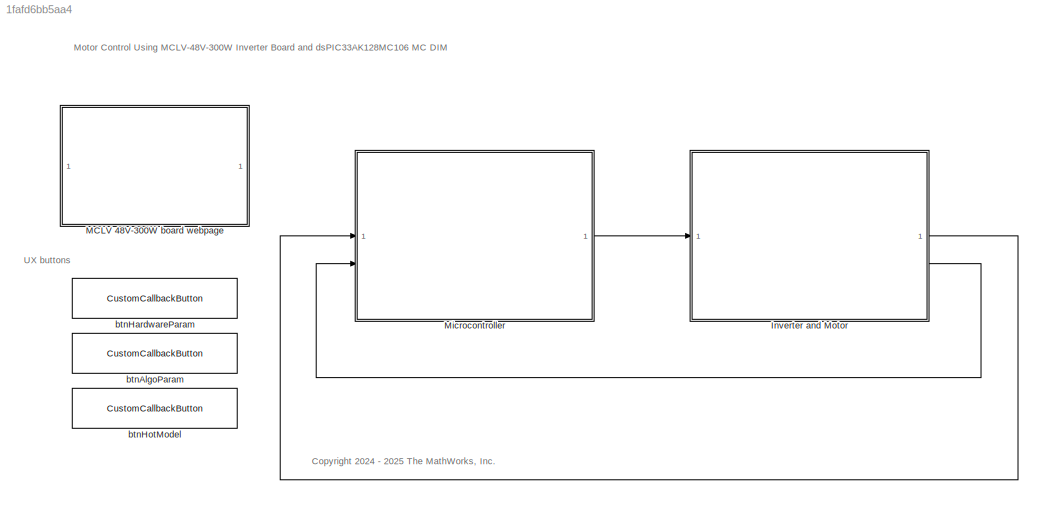
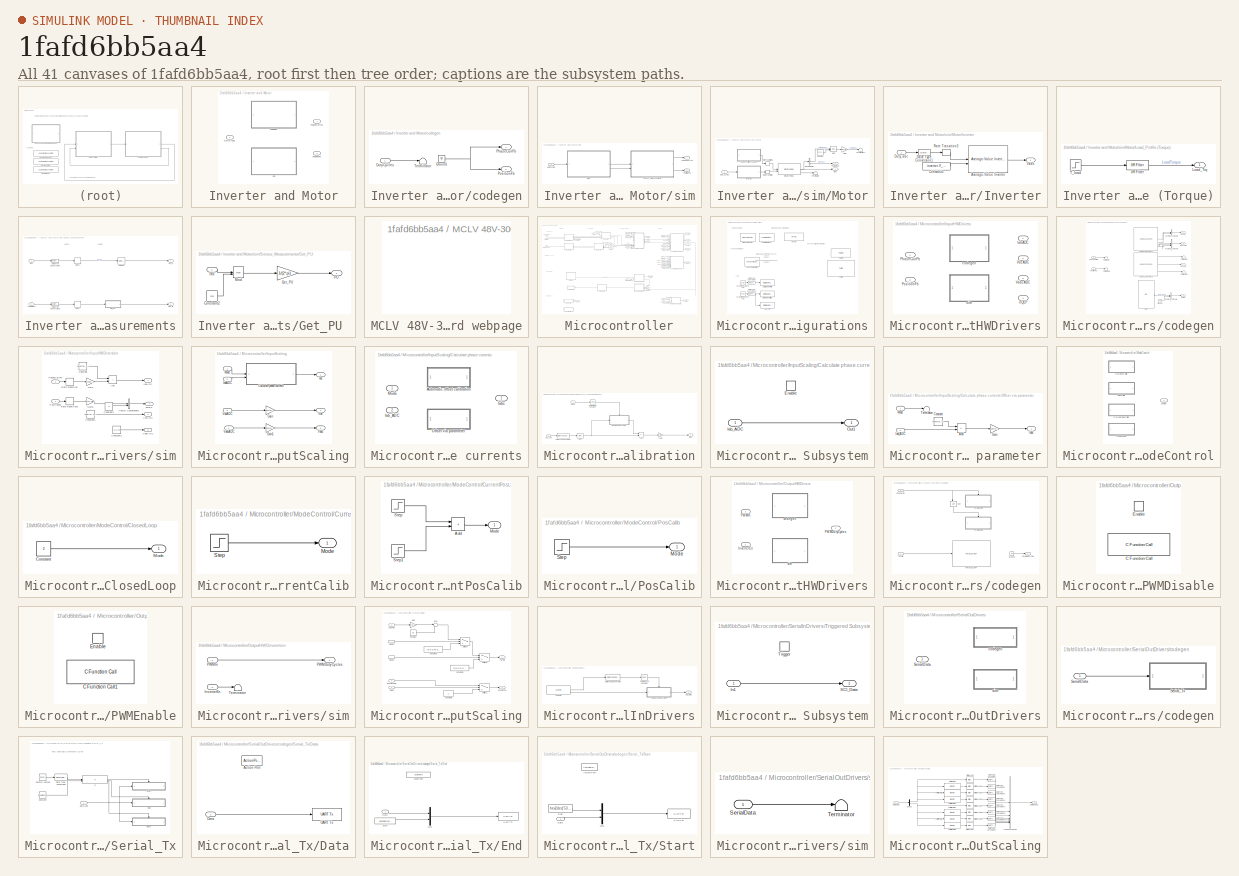
[diagram: thumbnail index - all 41 canvases of the model, root first then tree order]
MODEL slx_1fafd6bb5aa4
KIND model
CONFIG AbsTol = auto
CONFIG EnableMultiTasking = on
CONFIG FixedStep = 50e-6
CONFIG InitFcn = MicrochipTargetMotorControlData;\nmcbMotorSwapData;\n
CONFIG MaxStep = auto
CONFIG MinStep = auto
CONFIG RelTol = 1e-3
CONFIG SampleTimeConstraint = Unconstrained
CONFIG SolverName = FixedStepDiscrete
CONFIG StartTime = 0.0
CONFIG StopTime = inf
BLOCK [SubSystem] Inverter and Motor
  Variant = on
  VariantControlMode = sim codegen switching
BLOCK [Inport] Inverter and Motor/DutyCycles
BLOCK [Outport] Inverter and Motor/PhaseCurrFb
BLOCK [Outport] Inverter and Motor/PositionFb
  Port = 2
BLOCK [SubSystem] Inverter and Motor/codegen
  VariantControl = (codegen)
BLOCK [Inport] Inverter and Motor/codegen/DutyCycles
BLOCK [Ground] Inverter and Motor/codegen/Ground
BLOCK [Outport] Inverter and Motor/codegen/PhaseCurrFb
BLOCK [Outport] Inverter and Motor/codegen/PositionFb
  Port = 2
BLOCK [Terminator] Inverter and Motor/codegen/Terminator
BLOCK [SubSystem] Inverter and Motor/sim
  VariantControl = (sim)
BLOCK [Inport] Inverter and Motor/sim/DutyCycles
BLOCK [SubSystem] Inverter and Motor/sim/Motor
BLOCK [BusSelector] Inverter and Motor/sim/Motor/Bus Selector
  OutputSignals = MtrElcPos,MtrPos
BLOCK [Constant] Inverter and Motor/sim/Motor/Constant
  Value = 2*pi
BLOCK [Inport] Inverter and Motor/sim/Motor/Duty_Cycles
BLOCK [Gain] Inverter and Motor/sim/Motor/Gain
  Gain = 1/(2*pi)
BLOCK [Outport] Inverter and Motor/sim/Motor/Iabc
  VectorParamsAs1DForOutWhenUnconnected = off
BLOCK [Reference] Inverter and Motor/sim/Motor/Interior PMSM  REF=autolibpmsminterior/Interior PMSM
  SourceBlock = autolibpmsminterior/Interior PMSM
  SourceType = Interior PMSM
BLOCK [SubSystem] Inverter and Motor/sim/Motor/Inverter
BLOCK [Reference] Inverter and Motor/sim/Motor/Inverter/Average-Value Inverter  REF=mcbplantlib/Average-Value Inverter
  SourceBlock = mcbplantlib/Average-Value Inverter
  SourceType = Average Value Inverter
BLOCK [Constant] Inverter and Motor/sim/Motor/Inverter/Constant2
  OutDataTypeStr = single
  SampleTime = -1
  Value = inverter.V_dc
BLOCK [DataTypeConversion] Inverter and Motor/sim/Motor/Inverter/Data Type Conversion1
  OutDataTypeStr = single
  RndMeth = Simplest
  SaturateOnIntegerOverflow = off
BLOCK [Inport] Inverter and Motor/sim/Motor/Inverter/Duty_abc
BLOCK [RateTransition] Inverter and Motor/sim/Motor/Inverter/Rate Transition3
  Deterministic = off
  OutPortSampleTime = Ts_inverter
BLOCK [Outport] Inverter and Motor/sim/Motor/Inverter/Vabc
  VectorParamsAs1DForOutWhenUnconnected = off
BLOCK [SubSystem] Inverter and Motor/sim/Motor/Load_Profile (Torque)
BLOCK [Reference] Inverter and Motor/sim/Motor/Load_Profile (Torque)/IIR Filter  REF=mcbcontrolslib/IIR Filter
  SourceBlock = mcbcontrolslib/IIR Filter
  SourceType = IIR Filter
BLOCK [Outport] Inverter and Motor/sim/Motor/Load_Profile (Torque)/Load_Trq
  VectorParamsAs1DForOutWhenUnconnected = off
BLOCK [Step] Inverter and Motor/sim/Motor/Load_Profile (Torque)/T_load
  After = 0.05 * pmsm.T_rated
  SampleTime = Ts_motor
  Time = 8
BLOCK [Math] Inverter and Motor/sim/Motor/Mod
  Operator = mod
BLOCK [RateTransition] Inverter and Motor/sim/Motor/Rate Transition
  Deterministic = off
  OutPortSampleTime = Ts_motor
BLOCK [RateTransition] Inverter and Motor/sim/Motor/Rate Transition1
  Deterministic = off
  OutPortSampleTime = Ts_motor
BLOCK [Terminator] Inverter and Motor/sim/Motor/Terminator
BLOCK [Terminator] Inverter and Motor/sim/Motor/Terminator1
BLOCK [Outport] Inverter and Motor/sim/Motor/ThetaMech
  Port = 2
  VectorParamsAs1DForOutWhenUnconnected = off
BLOCK [Outport] Inverter and Motor/sim/PhaseCurrFb
BLOCK [Outport] Inverter and Motor/sim/PositionFb
  Port = 2
BLOCK [SubSystem] Inverter and Motor/sim/Sensor_Measurements
BLOCK [DataTypeConversion] Inverter and Motor/sim/Sensor_Measurements/Data Type Conversion2
  OutDataTypeStr = single
  RndMeth = Simplest
  SaturateOnIntegerOverflow = off
BLOCK [DataTypeConversion] Inverter and Motor/sim/Sensor_Measurements/Data Type Conversion4
  OutDataTypeStr = single
  RndMeth = Simplest
  SaturateOnIntegerOverflow = off
BLOCK [Delay] Inverter and Motor/sim/Sensor_Measurements/Delay1
  InputPortMap = u0
BLOCK [Delay] Inverter and Motor/sim/Sensor_Measurements/Delay2
  InputPortMap = u0
BLOCK [SubSystem] Inverter and Motor/sim/Sensor_Measurements/Get_PU 
BLOCK [Constant] Inverter and Motor/sim/Sensor_Measurements/Get_PU /Constant2
  OutDataTypeStr = single
  SampleTime = -1
  Value = 2*pi
BLOCK [Gain] Inverter and Motor/sim/Sensor_Measurements/Get_PU /Get_PU
  Gain = 1/(2*pi)
  OutDataTypeStr = dataType
  RndMeth = Simplest
BLOCK [Math] Inverter and Motor/sim/Sensor_Measurements/Get_PU /Mod
  Operator = mod
BLOCK [Outport] Inverter and Motor/sim/Sensor_Measurements/Get_PU /PU
  VectorParamsAs1DForOutWhenUnconnected = off
BLOCK [Inport] Inverter and Motor/sim/Sensor_Measurements/Get_PU /rad
BLOCK [Outport] Inverter and Motor/sim/Sensor_Measurements/Iab_fb
  VectorParamsAs1DForOutWhenUnconnected = off
BLOCK [Inport] Inverter and Motor/sim/Sensor_Measurements/Iabc
BLOCK [Outport] Inverter and Motor/sim/Sensor_Measurements/Pos_fb
  Port = 2
  VectorParamsAs1DForOutWhenUnconnected = off
BLOCK [Selector] Inverter and Motor/sim/Sensor_Measurements/Selector
  IndexOptions = Index vector (dialog)
  Indices = [1 2]
  InputPortWidth = 3
  OutputSizes = 1
BLOCK [Inport] Inverter and Motor/sim/Sensor_Measurements/ThetaMech
  Port = 2
BLOCK [SubSystem] MCLV 48V-300W board webpage
  OpenFcn = web('https://www.microchip.com/en-us/development-tool/EV62P66A','-browser'); % dsPIC33CK256MP508 DIM\npause(1);\nweb('https://www.microchip.com/en-us/development-tool/EV18H47A','-browser'); % LVMC 300W
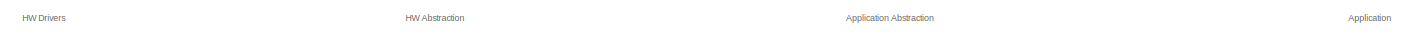
[diagram: Microcontroller - part 1/4, top center region]
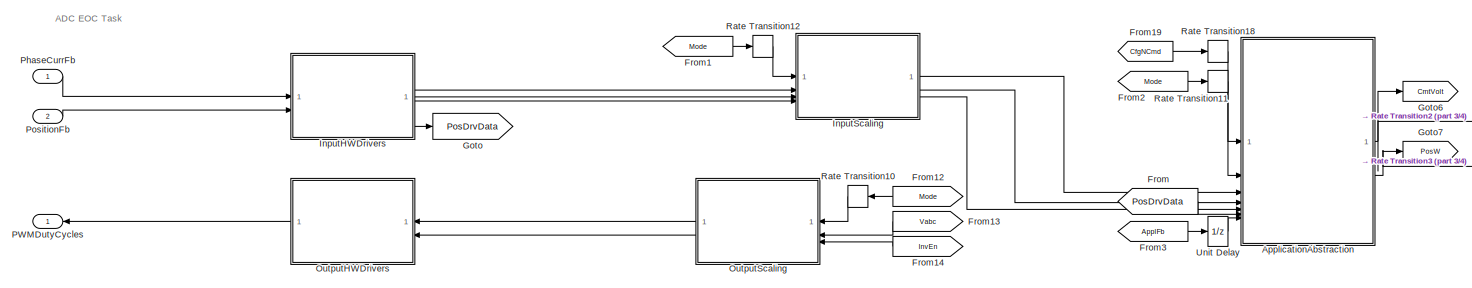
[diagram: Microcontroller - part 2/4, top center region]
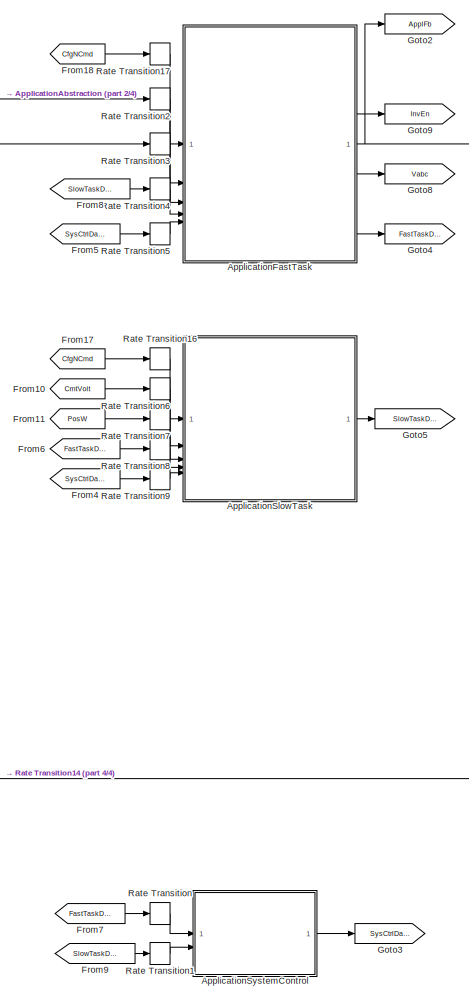
[diagram: Microcontroller - part 3/4, right side, full height]
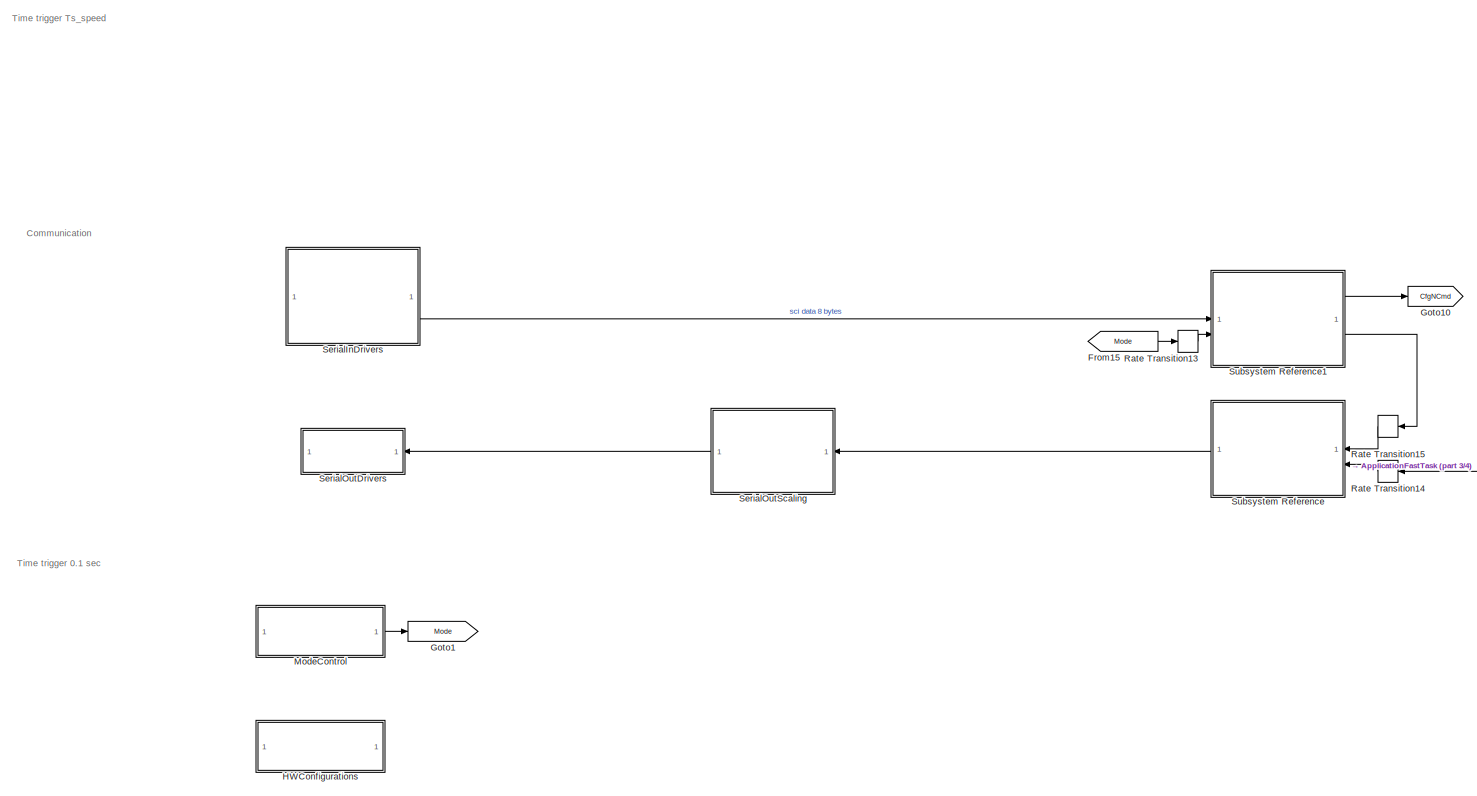
[diagram: Microcontroller - part 4/4, central region]
BLOCK [SubSystem] Microcontroller
BLOCK [SubSystem] Microcontroller/ApplicationAbstraction
  ReferencedSubsystem = ApplicationAbstractionMotorSwap
BLOCK [SubSystem] Microcontroller/ApplicationFastTask
  ReferencedSubsystem = ApplicationMotorSwapHighPrio
  SystemSampleTime = Ts
  TreatAsAtomicUnit = on
BLOCK [SubSystem] Microcontroller/ApplicationSlowTask
  ReferencedSubsystem = ApplicationMotorSwapLowPrio
  SystemSampleTime = Ts_speed
  TreatAsAtomicUnit = on
BLOCK [SubSystem] Microcontroller/ApplicationSystemControl
  ReferencedSubsystem = ApplicationMotorSwapSysControl
  SystemSampleTime = 0.1
  TreatAsAtomicUnit = on
BLOCK [From] Microcontroller/From
  GotoTag = PosDrvData
BLOCK [From] Microcontroller/From1
  GotoTag = Mode
BLOCK [From] Microcontroller/From10
  GotoTag = CrntVolt
BLOCK [From] Microcontroller/From11
  GotoTag = PosW
BLOCK [From] Microcontroller/From12
  GotoTag = Mode
BLOCK [From] Microcontroller/From13
  GotoTag = Vabc
BLOCK [From] Microcontroller/From14
  GotoTag = InvEn
BLOCK [From] Microcontroller/From15
  GotoTag = Mode
BLOCK [From] Microcontroller/From17
  GotoTag = CfgNCmd
BLOCK [From] Microcontroller/From18
  GotoTag = CfgNCmd
BLOCK [From] Microcontroller/From19
  GotoTag = CfgNCmd
BLOCK [From] Microcontroller/From2
  GotoTag = Mode
BLOCK [From] Microcontroller/From3
  GotoTag = ApplFb
BLOCK [From] Microcontroller/From4
  GotoTag = SysCtrlData
BLOCK [From] Microcontroller/From5
  GotoTag = SysCtrlData
BLOCK [From] Microcontroller/From6
  GotoTag = FastTaskData
BLOCK [From] Microcontroller/From7
  GotoTag = FastTaskData
BLOCK [From] Microcontroller/From8
  GotoTag = SlowTaskData
BLOCK [From] Microcontroller/From9
  GotoTag = SlowTaskData
BLOCK [Goto] Microcontroller/Goto
  GotoTag = PosDrvData
BLOCK [Goto] Microcontroller/Goto1
  GotoTag = Mode
BLOCK [Goto] Microcontroller/Goto10
  GotoTag = CfgNCmd
BLOCK [Goto] Microcontroller/Goto2
  GotoTag = ApplFb
BLOCK [Goto] Microcontroller/Goto3
  GotoTag = SysCtrlData
BLOCK [Goto] Microcontroller/Goto4
  GotoTag = FastTaskData
BLOCK [Goto] Microcontroller/Goto5
  GotoTag = SlowTaskData
BLOCK [Goto] Microcontroller/Goto6
  GotoTag = CrntVolt
BLOCK [Goto] Microcontroller/Goto7
  GotoTag = PosW
BLOCK [Goto] Microcontroller/Goto8
  GotoTag = Vabc
BLOCK [Goto] Microcontroller/Goto9
  GotoTag = InvEn
BLOCK [SubSystem] Microcontroller/HWConfigurations
BLOCK [Reference] Microcontroller/HWConfigurations/Compiler Options  REF=MCHP_Blockset/System Configuration/Compiler Options
  Priority = 1
  SourceBlock = MCHP_Blockset/System Configuration/Compiler Options
  SourceProductName = MPLAB Device Blocks for Simulink
BLOCK [Reference] Microcontroller/HWConfigurations/Counter Free-Running1  REF=simulink/Sources/Counter
Free-Running
  SourceBlock = simulink/Sources/Counter\nFree-Running
  SourceType = Counter Free-Running
BLOCK [Reference] Microcontroller/HWConfigurations/Counter Free-Running2  REF=simulink/Sources/Counter
Free-Running
  SourceBlock = simulink/Sources/Counter\nFree-Running
  SourceType = Counter Free-Running
BLOCK [DataTypeConversion] Microcontroller/HWConfigurations/Data Type Conversion
  RndMeth = Floor
  SaturateOnIntegerOverflow = off
BLOCK [DataTypeConversion] Microcontroller/HWConfigurations/Data Type Conversion1
  RndMeth = Floor
  SaturateOnIntegerOverflow = off
BLOCK [Reference] Microcontroller/HWConfigurations/Digital Output Write  REF=MCHP_Blockset/Digital IO/Digital Output
Write
  SourceBlock = MCHP_Blockset/Digital IO/Digital Output\nWrite
  SourceProductName = MPLAB Device Blocks for Simulink
  SourceType = Output driver for Digital Output Pins
BLOCK [Reference] Microcontroller/HWConfigurations/Digital Output Write1  REF=MCHP_Blockset/Digital IO/Digital Output
Write
  SourceBlock = MCHP_Blockset/Digital IO/Digital Output\nWrite
  SourceProductName = MPLAB Device Blocks for Simulink
  SourceType = Output driver for Digital Output Pins
BLOCK [Reference] Microcontroller/HWConfigurations/LED_PIM  REF=MCHP_Blockset/Digital IO/Digital Output
Write
  SourceBlock = MCHP_Blockset/Digital IO/Digital Output\nWrite
  SourceProductName = MPLAB Device Blocks for Simulink
  SourceType = Output driver for Digital Output Pins
BLOCK [Reference] Microcontroller/HWConfigurations/Microchip Master  REF=MCHP_Blockset/System Configuration/Microchip Master
  Priority = 1
  SourceBlock = MCHP_Blockset/System Configuration/Microchip Master
  SourceProductName = MPLAB Device Blocks for Simulink
BLOCK [Reference] Microcontroller/HWConfigurations/Op-Amp  REF=MCHP_Blockset/Analog IO/Op-Amp
  Priority = -2000
  SourceBlock = MCHP_Blockset/Analog IO/Op-Amp
  SourceProductName = MPLAB Device Blocks for Simulink
  SourceType = Configure on chip Op AMP
  UserDataPersistent = on
BLOCK [Reference] Microcontroller/HWConfigurations/Port Info  REF=MCHP_Blockset/System Info/Port Info
  SourceBlock = MCHP_Blockset/System Info/Port Info
  SourceProductName = MPLAB Device Blocks for Simulink
BLOCK [Reference] Microcontroller/HWConfigurations/Timer Info  REF=MCHP_Blockset/System Info/Timer Info
  SourceBlock = MCHP_Blockset/System Info/Timer Info
  SourceProductName = MPLAB Device Blocks for Simulink
BLOCK [Reference] Microcontroller/HWConfigurations/UART Configuration  REF=MCHP_Blockset/BUS UART/UART Configuration
  SourceBlock = MCHP_Blockset/BUS UART/UART Configuration
  SourceProductName = MPLAB Device Blocks for Simulink
  SourceType = Configuration for UART peripheral
BLOCK [SubSystem] Microcontroller/InputHWDrivers
  Variant = on
  VariantControlMode = sim codegen switching
BLOCK [Outport] Microcontroller/InputHWDrivers/IabADC
BLOCK [Inport] Microcontroller/InputHWDrivers/PhaseCurrFb
BLOCK [Inport] Microcontroller/InputHWDrivers/PositionFb
  Port = 2
BLOCK [Outport] Microcontroller/InputHWDrivers/VabcADC
  Port = 3
BLOCK [Outport] Microcontroller/InputHWDrivers/VdcADC
  Port = 2
BLOCK [SubSystem] Microcontroller/InputHWDrivers/codegen
  VariantControl = (codegen)
BLOCK [Reference] Microcontroller/InputHWDrivers/codegen/ADC HS 12b dsPICA1  REF=MCHP_Blockset/Analog IO/ADC HS 12b dsPICA
  SourceBlock = MCHP_Blockset/Analog IO/ADC HS 12b dsPICA
  SourceProductName = MPLAB Device Blocks for Simulink
  SourceType = ADC HS 12b for dsPIC 33AK family
  UserDataPersistent = on
BLOCK [Reference] Microcontroller/InputHWDrivers/codegen/ADC HS 12b dsPICA2  REF=MCHP_Blockset/Analog IO/ADC HS 12b dsPICA
  SourceBlock = MCHP_Blockset/Analog IO/ADC HS 12b dsPICA
  SourceProductName = MPLAB Device Blocks for Simulink
  SourceType = ADC HS 12b for dsPIC 33AK family
  UserDataPersistent = on
BLOCK [Ground] Microcontroller/InputHWDrivers/codegen/Ground
BLOCK [Outport] Microcontroller/InputHWDrivers/codegen/IabADC
BLOCK [Inport] Microcontroller/InputHWDrivers/codegen/PhaseCurrFb
BLOCK [Inport] Microcontroller/InputHWDrivers/codegen/PositionFb
  Port = 2
BLOCK [Reference] Microcontroller/InputHWDrivers/codegen/QEI1  REF=MCHP_Blockset/QEI/QEI
  SourceBlock = MCHP_Blockset/QEI/QEI
  SourceProductName = MPLAB Device Blocks for Simulink
  SourceType = Output Driver for Quadrature Encoder Interface (QEI) peripheral
  UserDataPersistent = on
BLOCK [Terminator] Microcontroller/InputHWDrivers/codegen/Terminator
BLOCK [Terminator] Microcontroller/InputHWDrivers/codegen/Terminator1
BLOCK [Terminator] Microcontroller/InputHWDrivers/codegen/Terminator2
BLOCK [Terminator] Microcontroller/InputHWDrivers/codegen/Terminator3
BLOCK [Outport] Microcontroller/InputHWDrivers/codegen/VabcADC
  Port = 3
BLOCK [Outport] Microcontroller/InputHWDrivers/codegen/VdcADC
  Port = 2
BLOCK [Concatenate] Microcontroller/InputHWDrivers/codegen/Vector Concatenate
BLOCK [Concatenate] Microcontroller/InputHWDrivers/codegen/Vector Concatenate1
BLOCK [Concatenate] Microcontroller/InputHWDrivers/codegen/Vector Concatenate2
  NumInputs = 3
BLOCK [Outport] Microcontroller/InputHWDrivers/codegen/eQEP
  Port = 4
BLOCK [Outport] Microcontroller/InputHWDrivers/eQEP
  Port = 4
BLOCK [SubSystem] Microcontroller/InputHWDrivers/sim
  VariantControl = (sim)
BLOCK [Sum] Microcontroller/InputHWDrivers/sim/Add
  IconShape = rectangular
  OutDataTypeStr = Inherit: Same as first input
  RndMeth = Simplest
BLOCK [Constant] Microcontroller/InputHWDrivers/sim/Constant
  OutDataTypeStr = int16
  Value = [inverter.CtSensAOffset inverter.CtSensBOffset]
BLOCK [Constant] Microcontroller/InputHWDrivers/sim/Constant1
  OutDataTypeStr = uint16
  SampleTime = Ts
  Value = inverter.V_dc / inverter.VoltPerCount
BLOCK [Constant] Microcontroller/InputHWDrivers/sim/Constant2
  OutDataTypeStr = Inherit: Inherit via back propagation
  SampleTime = Ts
  Value = 0
BLOCK [Constant] Microcontroller/InputHWDrivers/sim/Constant3
  OutDataTypeStr = uint16
  SampleTime = Ts
  Value = [0 0 0]
BLOCK [Gain] Microcontroller/InputHWDrivers/sim/Gain
  Gain = 1/inverter.AMPPerCount
  OutDataTypeStr = int16
  RndMeth = Simplest
BLOCK [Gain] Microcontroller/InputHWDrivers/sim/Gain1
  Gain = pmsm.QEPSlits * 4
  OutDataTypeStr = uint16
  RndMeth = Simplest
BLOCK [Outport] Microcontroller/InputHWDrivers/sim/IabADC
BLOCK [Inport] Microcontroller/InputHWDrivers/sim/PhaseCurrFb
BLOCK [Inport] Microcontroller/InputHWDrivers/sim/PositionFb
  Port = 2
BLOCK [RateTransition] Microcontroller/InputHWDrivers/sim/Rate Transition
  Deterministic = off
  OutPortSampleTime = Ts
BLOCK [RateTransition] Microcontroller/InputHWDrivers/sim/Rate Transition1
  Deterministic = off
  OutPortSampleTime = Ts
BLOCK [Outport] Microcontroller/InputHWDrivers/sim/VabcADC
  Port = 3
BLOCK [Outport] Microcontroller/InputHWDrivers/sim/VdcADC
  Port = 2
BLOCK [Concatenate] Microcontroller/InputHWDrivers/sim/Vector Concatenate
BLOCK [Outport] Microcontroller/InputHWDrivers/sim/eQEP
  Port = 4
BLOCK [SubSystem] Microcontroller/InputScaling
BLOCK [SubSystem] Microcontroller/InputScaling/Calculate phase currents
  Variant = on
BLOCK [SubSystem] Microcontroller/InputScaling/Calculate phase currents/Automatic offset calibration
  VariantControl = inverter.ADCOffsetCalibEnable == 1
BLOCK [Sum] Microcontroller/InputScaling/Calculate phase currents/Automatic offset calibration/Add
  IconShape = rectangular
  Inputs = -+
BLOCK [Bias] Microcontroller/InputScaling/Calculate phase currents/Automatic offset calibration/Bias
  Bias = -2^11
  SaturateOnIntegerOverflow = off
BLOCK [Reference] Microcontroller/InputScaling/Calculate phase currents/Automatic offset calibration/Compare To Constant  REF=simulink/Logic and Bit
Operations/Compare
To Constant
  SourceBlock = simulink/Logic and Bit\nOperations/Compare\nTo Constant
  SourceType = Compare To Constant
BLOCK [DataTypeConversion] Microcontroller/InputScaling/Calculate phase currents/Automatic offset calibration/Data Type Conversion
  OutDataTypeStr = int16
  RndMeth = Floor
  SaturateOnIntegerOverflow = off
BLOCK [SubSystem] Microcontroller/InputScaling/Calculate phase currents/Automatic offset calibration/Enabled Subsystem
  TreatAsAtomicUnit = on
BLOCK [EnablePort] Microcontroller/InputScaling/Calculate phase currents/Automatic offset calibration/Enabled Subsystem/Enable
BLOCK [Inport] Microcontroller/InputScaling/Calculate phase currents/Automatic offset calibration/Enabled Subsystem/Iab_ADC
BLOCK [Outport] Microcontroller/InputScaling/Calculate phase currents/Automatic offset calibration/Enabled Subsystem/Out1
BLOCK [Gain] Microcontroller/InputScaling/Calculate phase currents/Automatic offset calibration/Gain
  Gain = inverter.AMPPerCount
  OutDataTypeStr = dataType
  RndMeth = Simplest
BLOCK [Inport] Microcontroller/InputScaling/Calculate phase currents/Automatic offset calibration/Iab_ADC
  Port = 2
BLOCK [Outport] Microcontroller/InputScaling/Calculate phase currents/Automatic offset calibration/Iabc
BLOCK [Inport] Microcontroller/InputScaling/Calculate phase currents/Automatic offset calibration/Mode
BLOCK [Inport] Microcontroller/InputScaling/Calculate phase currents/Iab_ADC
  Port = 2
BLOCK [Outport] Microcontroller/InputScaling/Calculate phase currents/Iabc
BLOCK [Inport] Microcontroller/InputScaling/Calculate phase currents/Mode
BLOCK [SubSystem] Microcontroller/InputScaling/Calculate phase currents/Offser via parameter
  VariantControl = inverter.ADCOffsetCalibEnable == 0
BLOCK [Sum] Microcontroller/InputScaling/Calculate phase currents/Offser via parameter/Add
  IconShape = rectangular
  Inputs = -+
BLOCK [Constant] Microcontroller/InputScaling/Calculate phase currents/Offser via parameter/Constant
  OutDataTypeStr = int16
  Value = [inverter.CtSensAOffset inverter.CtSensBOffset]
BLOCK [Gain] Microcontroller/InputScaling/Calculate phase currents/Offser via parameter/Gain
  Gain = inverter.AMPPerCount
  OutDataTypeStr = dataType
  RndMeth = Simplest
BLOCK [Inport] Microcontroller/InputScaling/Calculate phase currents/Offser via parameter/Iab_ADC
  Port = 2
BLOCK [Outport] Microcontroller/InputScaling/Calculate phase currents/Offser via parameter/Iabc
BLOCK [Inport] Microcontroller/InputScaling/Calculate phase currents/Offser via parameter/Mode
BLOCK [Terminator] Microcontroller/InputScaling/Calculate phase currents/Offser via parameter/Terminator
BLOCK [Gain] Microcontroller/InputScaling/Gain
  Gain = inverter.VoltPerCount
  OutDataTypeStr = dataType
  RndMeth = Simplest
BLOCK [Gain] Microcontroller/InputScaling/Gain1
  Gain = inverter.VoltPerCount
  OutDataTypeStr = dataType
  RndMeth = Simplest
BLOCK [Outport] Microcontroller/InputScaling/Iab
BLOCK [Inport] Microcontroller/InputScaling/IabADC
  Port = 2
BLOCK [Inport] Microcontroller/InputScaling/Mode
BLOCK [Outport] Microcontroller/InputScaling/Vabc
  Port = 3
BLOCK [Inport] Microcontroller/InputScaling/VabcADC
  Port = 4
BLOCK [Outport] Microcontroller/InputScaling/Vdc
  Port = 2
BLOCK [Inport] Microcontroller/InputScaling/VdcADC
  Port = 3
BLOCK [SubSystem] Microcontroller/ModeControl
  Variant = on
BLOCK [SubSystem] Microcontroller/ModeControl/ClosedLoop
  VariantControl = inverter.ADCOffsetCalibEnable == 0 && pmsm.QEPIndexPresent == true
BLOCK [Constant] Microcontroller/ModeControl/ClosedLoop/Constant
  OutDataTypeStr = single
  SampleTime = 0.1
  Value = 2
BLOCK [Outport] Microcontroller/ModeControl/ClosedLoop/Mode
BLOCK [SubSystem] Microcontroller/ModeControl/CurrentCalib
  VariantControl = inverter.ADCOffsetCalibEnable == 1 && pmsm.QEPIndexPresent == true
BLOCK [Outport] Microcontroller/ModeControl/CurrentCalib/Mode
BLOCK [Step] Microcontroller/ModeControl/CurrentCalib/Step
  After = 2
  OutDataTypeStr = single
  SampleTime = 0.1
BLOCK [SubSystem] Microcontroller/ModeControl/CurrentPosCalib
  VariantControl = inverter.ADCOffsetCalibEnable == 1 && pmsm.QEPIndexPresent == false
BLOCK [Sum] Microcontroller/ModeControl/CurrentPosCalib/Add
  AccumDataTypeStr = Inherit: Same as first input
  IconShape = rectangular
BLOCK [Outport] Microcontroller/ModeControl/CurrentPosCalib/Mode
BLOCK [Step] Microcontroller/ModeControl/CurrentPosCalib/Step
  OutDataTypeStr = single
  SampleTime = 0.1
BLOCK [Step] Microcontroller/ModeControl/CurrentPosCalib/Step1
  OutDataTypeStr = single
  SampleTime = 0.1
  Time = 2
BLOCK [Outport] Microcontroller/ModeControl/Mode
BLOCK [SubSystem] Microcontroller/ModeControl/PosCalib
  VariantControl = inverter.ADCOffsetCalibEnable == 0 && pmsm.QEPIndexPresent == false
BLOCK [Outport] Microcontroller/ModeControl/PosCalib/Mode
BLOCK [Step] Microcontroller/ModeControl/PosCalib/Step
  After = 2
  Before = 1
  OutDataTypeStr = single
  SampleTime = 0.1
BLOCK [SubSystem] Microcontroller/OutputHWDrivers
  Variant = on
  VariantControlMode = sim codegen switching
BLOCK [Inport] Microcontroller/OutputHWDrivers/InverterEn
  Port = 2
BLOCK [Outport] Microcontroller/OutputHWDrivers/PWMDutyCycles
BLOCK [Inport] Microcontroller/OutputHWDrivers/PWMIn
BLOCK [SubSystem] Microcontroller/OutputHWDrivers/codegen
  VariantControl = (codegen)
BLOCK [Ground] Microcontroller/OutputHWDrivers/codegen/Ground
BLOCK [Inport] Microcontroller/OutputHWDrivers/codegen/InverterEn
  Port = 2
BLOCK [Logic] Microcontroller/OutputHWDrivers/codegen/NOT
  AllPortsSameDT = off
  IconShape = distinctive
  NameLocation = left
  Operator = NOT
  OutDataTypeStr = boolean
BLOCK [SubSystem] Microcontroller/OutputHWDrivers/codegen/PWMDisable
BLOCK [Reference] Microcontroller/OutputHWDrivers/codegen/PWMDisable/C Function Call  REF=MCHP_Blockset/User Functions/C Function Call
  SourceBlock = MCHP_Blockset/User Functions/C Function Call
  SourceProductName = MPLAB Device Blocks for Simulink
  SourceType = C Function Call
  UserDataPersistent = on
BLOCK [EnablePort] Microcontroller/OutputHWDrivers/codegen/PWMDisable/Enable
BLOCK [Outport] Microcontroller/OutputHWDrivers/codegen/PWMDutyCycles
BLOCK [SubSystem] Microcontroller/OutputHWDrivers/codegen/PWMEnable
BLOCK [Reference] Microcontroller/OutputHWDrivers/codegen/PWMEnable/C Function Call1  REF=MCHP_Blockset/User Functions/C Function Call
  SourceBlock = MCHP_Blockset/User Functions/C Function Call
  SourceProductName = MPLAB Device Blocks for Simulink
  SourceType = C Function Call
  UserDataPersistent = on
BLOCK [EnablePort] Microcontroller/OutputHWDrivers/codegen/PWMEnable/Enable
BLOCK [Inport] Microcontroller/OutputHWDrivers/codegen/PWMIn
BLOCK [Reference] Microcontroller/OutputHWDrivers/codegen/PWM_HS_FEP  REF=MCHP_Blockset/PWM IO/PWM_HS_FEP
  Priority = -2000
  SourceBlock = MCHP_Blockset/PWM IO/PWM_HS_FEP
  SourceProductName = MPLAB Device Blocks for Simulink
  SourceType = PWM High-Speed Fine-Edge-Placement
  UserDataPersistent = on
BLOCK [SubSystem] Microcontroller/OutputHWDrivers/sim
  VariantControl = (sim)
BLOCK [Inport] Microcontroller/OutputHWDrivers/sim/InverterEn
  Port = 2
BLOCK [Outport] Microcontroller/OutputHWDrivers/sim/PWMDutyCycles
BLOCK [Inport] Microcontroller/OutputHWDrivers/sim/PWMIn
BLOCK [Terminator] Microcontroller/OutputHWDrivers/sim/Terminator
BLOCK [SubSystem] Microcontroller/OutputScaling
BLOCK [Constant] Microcontroller/OutputScaling/Constant
  OutDataTypeStr = dataType
  SampleTime = -1
  Value = 0.5
BLOCK [Constant] Microcontroller/OutputScaling/Constant1
  OutDataTypeStr = dataType
  SampleTime = -1
  Value = [0.6 0.45 0.45]
BLOCK [Constant] Microcontroller/OutputScaling/Constant2
  OutDataTypeStr = Inherit: Inherit via back propagation
  SampleTime = -1
BLOCK [Constant] Microcontroller/OutputScaling/Constant3
  OutDataTypeStr = dataType
  SampleTime = -1
  Value = [0.5 0.5 0.5]
BLOCK [Outport] Microcontroller/OutputScaling/InverterEn
  Port = 2
BLOCK [Inport] Microcontroller/OutputScaling/InverterEnIn
  Port = 3
BLOCK [Inport] Microcontroller/OutputScaling/Mode
BLOCK [InportShadow] Microcontroller/OutputScaling/Mode1
BLOCK [InportShadow] Microcontroller/OutputScaling/Mode2
BLOCK [Outport] Microcontroller/OutputScaling/PWMIn
BLOCK [Sum] Microcontroller/OutputScaling/Sum
  AccumDataTypeStr = Inherit: Same as first input
  Inputs = |++
BLOCK [Switch] Microcontroller/OutputScaling/Switch1
  InputSameDT = off
  SaturateOnIntegerOverflow = off
  Threshold = 2
BLOCK [Switch] Microcontroller/OutputScaling/Switch2
  InputSameDT = off
  SaturateOnIntegerOverflow = off
  Threshold = 1
BLOCK [Switch] Microcontroller/OutputScaling/Switch3
  InputSameDT = off
  SaturateOnIntegerOverflow = off
  Threshold = 2
BLOCK [Inport] Microcontroller/OutputScaling/VabcRef
  Port = 2
BLOCK [Gain] Microcontroller/OutputScaling/gain
  Gain = 0.5
  OutDataTypeStr = Inherit: Same as input
  RndMeth = Simplest
BLOCK [Outport] Microcontroller/PWMDutyCycles
BLOCK [Inport] Microcontroller/PhaseCurrFb
BLOCK [Inport] Microcontroller/PositionFb
  Port = 2
BLOCK [RateTransition] Microcontroller/Rate Transition
  Deterministic = off
BLOCK [RateTransition] Microcontroller/Rate Transition1
  Deterministic = off
BLOCK [RateTransition] Microcontroller/Rate Transition10
  Deterministic = off
BLOCK [RateTransition] Microcontroller/Rate Transition11
  Deterministic = off
  OutPortSampleTime = Ts
BLOCK [RateTransition] Microcontroller/Rate Transition12
  Deterministic = off
BLOCK [RateTransition] Microcontroller/Rate Transition13
  Deterministic = off
  OutPortSampleTime = Ts_serialIn
BLOCK [RateTransition] Microcontroller/Rate Transition14
  Deterministic = off
  OutPortSampleTime = Ts_serialOut
BLOCK [RateTransition] Microcontroller/Rate Transition15
  Deterministic = off
  OutPortSampleTime = Ts_serialOut
BLOCK [RateTransition] Microcontroller/Rate Transition16
  Deterministic = off
BLOCK [RateTransition] Microcontroller/Rate Transition17
  Deterministic = off
BLOCK [RateTransition] Microcontroller/Rate Transition18
  Deterministic = off
  OutPortSampleTime = Ts
BLOCK [RateTransition] Microcontroller/Rate Transition2
  Deterministic = off
BLOCK [RateTransition] Microcontroller/Rate Transition3
  Deterministic = off
BLOCK [RateTransition] Microcontroller/Rate Transition4
  Deterministic = off
BLOCK [RateTransition] Microcontroller/Rate Transition5
  Deterministic = off
BLOCK [RateTransition] Microcontroller/Rate Transition6
  Deterministic = off
BLOCK [RateTransition] Microcontroller/Rate Transition7
  Deterministic = off
BLOCK [RateTransition] Microcontroller/Rate Transition8
  Deterministic = off
BLOCK [RateTransition] Microcontroller/Rate Transition9
  Deterministic = off
BLOCK [SubSystem] Microcontroller/SerialInDrivers
BLOCK [Reference] Microcontroller/SerialInDrivers/Compare To Constant  REF=simulink/Logic and Bit
Operations/Compare
To Constant
  SourceBlock = simulink/Logic and Bit\nOperations/Compare\nTo Constant
  SourceType = Compare To Constant
BLOCK [DataTypeConversion] Microcontroller/SerialInDrivers/Data Type Conversion
  RndMeth = Floor
  SaturateOnIntegerOverflow = off
BLOCK [Outport] Microcontroller/SerialInDrivers/SCI_Data
BLOCK [SubSystem] Microcontroller/SerialInDrivers/Triggered Subsystem
  TreatAsAtomicUnit = on
BLOCK [Inport] Microcontroller/SerialInDrivers/Triggered Subsystem/In1
BLOCK [Outport] Microcontroller/SerialInDrivers/Triggered Subsystem/SCI_Data
BLOCK [TriggerPort] Microcontroller/SerialInDrivers/Triggered Subsystem/Trigger
  StatesWhenEnabling = held
  VariantControl = (inherit)
BLOCK [Reference] Microcontroller/SerialInDrivers/UART Rx  REF=MCHP_Blockset/BUS UART/UART Rx
  SourceBlock = MCHP_Blockset/BUS UART/UART Rx
  SourceProductName = MPLAB Device Blocks for Simulink
  SourceType = UART Rx Input Driver
BLOCK [SubSystem] Microcontroller/SerialOutDrivers
  Variant = on
  VariantControlMode = sim codegen switching
BLOCK [Inport] Microcontroller/SerialOutDrivers/SerialData
BLOCK [SubSystem] Microcontroller/SerialOutDrivers/codegen
  VariantControl = (codegen)
BLOCK [Inport] Microcontroller/SerialOutDrivers/codegen/SerialData
BLOCK [SubSystem] Microcontroller/SerialOutDrivers/codegen/Serial_Tx
BLOCK [Constant] Microcontroller/SerialOutDrivers/codegen/Serial_Tx/Constant
  OutDataTypeStr = uint16
  Value = target.frameSize -1
BLOCK [Reference] Microcontroller/SerialOutDrivers/codegen/Serial_Tx/Counter Limited  REF=simulink/Sources/Counter
Limited
  SourceBlock = simulink/Sources/Counter\nLimited
  SourceType = Counter Limited
BLOCK [SubSystem] Microcontroller/SerialOutDrivers/codegen/Serial_Tx/Data
  TreatAsAtomicUnit = on
BLOCK [DataTypeConversion] Microcontroller/SerialOutDrivers/codegen/Serial_Tx/Data Type Conversion
  OutDataTypeStr = uint16
  RndMeth = Simplest
  SaturateOnIntegerOverflow = off
BLOCK [ActionPort] Microcontroller/SerialOutDrivers/codegen/Serial_Tx/Data/Action Port
  ActionPortLabel = else
BLOCK [Inport] Microcontroller/SerialOutDrivers/codegen/Serial_Tx/Data/Data
BLOCK [Reference] Microcontroller/SerialOutDrivers/codegen/Serial_Tx/Data/UART Tx  REF=MCHP_Blockset/BUS UART/UART Tx
  SourceBlock = MCHP_Blockset/BUS UART/UART Tx
  SourceProductName = MPLAB Device Blocks for Simulink
  SourceType = UART Tx Output Driver
BLOCK [Inport] Microcontroller/SerialOutDrivers/codegen/Serial_Tx/Data_Log
BLOCK [SubSystem] Microcontroller/SerialOutDrivers/codegen/Serial_Tx/End
  TreatAsAtomicUnit = on
BLOCK [ActionPort] Microcontroller/SerialOutDrivers/codegen/Serial_Tx/End/Action Port
  ActionPortLabel = elseif(u1 == u2)
BLOCK [Inport] Microcontroller/SerialOutDrivers/codegen/Serial_Tx/End/Data
BLOCK [Mux] Microcontroller/SerialOutDrivers/codegen/Serial_Tx/End/Mux
  DisplayOption = bar
  Inputs = 2
BLOCK [Constant] Microcontroller/SerialOutDrivers/codegen/Serial_Tx/End/Start
  OutDataTypeStr = uint8
  Value = hex2dec('45')
BLOCK [Reference] Microcontroller/SerialOutDrivers/codegen/Serial_Tx/End/UART Tx  REF=MCHP_Blockset/BUS UART/UART Tx
  SourceBlock = MCHP_Blockset/BUS UART/UART Tx
  SourceProductName = MPLAB Device Blocks for Simulink
  SourceType = UART Tx Output Driver
BLOCK [If] Microcontroller/SerialOutDrivers/codegen/Serial_Tx/If
  ElseIfExpressions = u1 == u2
  IfExpression = u1 == 0
  NumInputs = 2
BLOCK [SubSystem] Microcontroller/SerialOutDrivers/codegen/Serial_Tx/Start
  TreatAsAtomicUnit = on
BLOCK [ActionPort] Microcontroller/SerialOutDrivers/codegen/Serial_Tx/Start/Action Port
  ActionPortLabel = if(u1 == 0)
BLOCK [Inport] Microcontroller/SerialOutDrivers/codegen/Serial_Tx/Start/Data
BLOCK [Constant] Microcontroller/SerialOutDrivers/codegen/Serial_Tx/Start/End
  OutDataTypeStr = uint8
  Value = hex2dec('53')
BLOCK [Mux] Microcontroller/SerialOutDrivers/codegen/Serial_Tx/Start/Mux
  DisplayOption = bar
  Inputs = 2
BLOCK [Reference] Microcontroller/SerialOutDrivers/codegen/Serial_Tx/Start/UART Tx  REF=MCHP_Blockset/BUS UART/UART Tx
  SourceBlock = MCHP_Blockset/BUS UART/UART Tx
  SourceProductName = MPLAB Device Blocks for Simulink
  SourceType = UART Tx Output Driver
BLOCK [SubSystem] Microcontroller/SerialOutDrivers/sim
  VariantControl = (sim)
BLOCK [Inport] Microcontroller/SerialOutDrivers/sim/SerialData
BLOCK [Terminator] Microcontroller/SerialOutDrivers/sim/Terminator
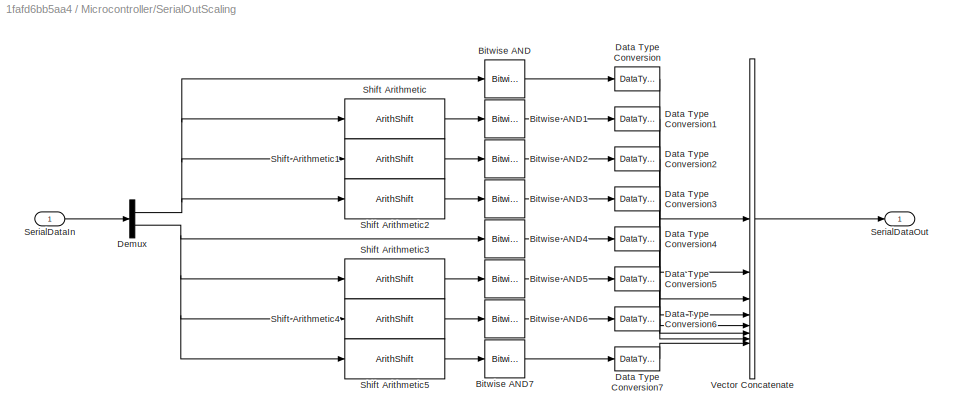
BLOCK [SubSystem] Microcontroller/SerialOutScaling
BLOCK [Reference] Microcontroller/SerialOutScaling/Bitwise AND  REF=simulink/Logic and Bit
Operations/Bitwise
Operator
  LibrarySourceBlock = simulink/Quick Insert/Logic and Bit\nOperations/Bitwise AND
  SourceBlock = simulink/Logic and Bit\nOperations/Bitwise\nOperator
  SourceType = Bitwise Operator
BLOCK [Reference] Microcontroller/SerialOutScaling/Bitwise AND1  REF=simulink/Logic and Bit
Operations/Bitwise
Operator
  LibrarySourceBlock = simulink/Quick Insert/Logic and Bit\nOperations/Bitwise AND
  SourceBlock = simulink/Logic and Bit\nOperations/Bitwise\nOperator
  SourceType = Bitwise Operator
BLOCK [Reference] Microcontroller/SerialOutScaling/Bitwise AND2  REF=simulink/Logic and Bit
Operations/Bitwise
Operator
  LibrarySourceBlock = simulink/Quick Insert/Logic and Bit\nOperations/Bitwise AND
  SourceBlock = simulink/Logic and Bit\nOperations/Bitwise\nOperator
  SourceType = Bitwise Operator
BLOCK [Reference] Microcontroller/SerialOutScaling/Bitwise AND3  REF=simulink/Logic and Bit
Operations/Bitwise
Operator
  LibrarySourceBlock = simulink/Quick Insert/Logic and Bit\nOperations/Bitwise AND
  SourceBlock = simulink/Logic and Bit\nOperations/Bitwise\nOperator
  SourceType = Bitwise Operator
BLOCK [Reference] Microcontroller/SerialOutScaling/Bitwise AND4  REF=simulink/Logic and Bit
Operations/Bitwise
Operator
  LibrarySourceBlock = simulink/Quick Insert/Logic and Bit\nOperations/Bitwise AND
  SourceBlock = simulink/Logic and Bit\nOperations/Bitwise\nOperator
  SourceType = Bitwise Operator
BLOCK [Reference] Microcontroller/SerialOutScaling/Bitwise AND5  REF=simulink/Logic and Bit
Operations/Bitwise
Operator
  LibrarySourceBlock = simulink/Quick Insert/Logic and Bit\nOperations/Bitwise AND
  SourceBlock = simulink/Logic and Bit\nOperations/Bitwise\nOperator
  SourceType = Bitwise Operator
BLOCK [Reference] Microcontroller/SerialOutScaling/Bitwise AND6  REF=simulink/Logic and Bit
Operations/Bitwise
Operator
  LibrarySourceBlock = simulink/Quick Insert/Logic and Bit\nOperations/Bitwise AND
  SourceBlock = simulink/Logic and Bit\nOperations/Bitwise\nOperator
  SourceType = Bitwise Operator
BLOCK [Reference] Microcontroller/SerialOutScaling/Bitwise AND7  REF=simulink/Logic and Bit
Operations/Bitwise
Operator
  LibrarySourceBlock = simulink/Quick Insert/Logic and Bit\nOperations/Bitwise AND
  SourceBlock = simulink/Logic and Bit\nOperations/Bitwise\nOperator
  SourceType = Bitwise Operator
BLOCK [DataTypeConversion] Microcontroller/SerialOutScaling/Data Type Conversion
  ConvertRealWorld = Stored Integer (SI)
  OutDataTypeStr = uint8
  RndMeth = Simplest
  SaturateOnIntegerOverflow = off
BLOCK [DataTypeConversion] Microcontroller/SerialOutScaling/Data Type Conversion1
  ConvertRealWorld = Stored Integer (SI)
  OutDataTypeStr = uint8
  RndMeth = Simplest
  SaturateOnIntegerOverflow = off
BLOCK [DataTypeConversion] Microcontroller/SerialOutScaling/Data Type Conversion2
  ConvertRealWorld = Stored Integer (SI)
  OutDataTypeStr = uint8
  RndMeth = Simplest
  SaturateOnIntegerOverflow = off
BLOCK [DataTypeConversion] Microcontroller/SerialOutScaling/Data Type Conversion3
  ConvertRealWorld = Stored Integer (SI)
  OutDataTypeStr = uint8
  RndMeth = Simplest
  SaturateOnIntegerOverflow = off
BLOCK [DataTypeConversion] Microcontroller/SerialOutScaling/Data Type Conversion4
  ConvertRealWorld = Stored Integer (SI)
  OutDataTypeStr = uint8
  RndMeth = Simplest
  SaturateOnIntegerOverflow = off
BLOCK [DataTypeConversion] Microcontroller/SerialOutScaling/Data Type Conversion5
  ConvertRealWorld = Stored Integer (SI)
  OutDataTypeStr = uint8
  RndMeth = Simplest
  SaturateOnIntegerOverflow = off
BLOCK [DataTypeConversion] Microcontroller/SerialOutScaling/Data Type Conversion6
  ConvertRealWorld = Stored Integer (SI)
  OutDataTypeStr = uint8
  RndMeth = Simplest
  SaturateOnIntegerOverflow = off
BLOCK [DataTypeConversion] Microcontroller/SerialOutScaling/Data Type Conversion7
  ConvertRealWorld = Stored Integer (SI)
  OutDataTypeStr = uint8
  RndMeth = Simplest
  SaturateOnIntegerOverflow = off
BLOCK [Demux] Microcontroller/SerialOutScaling/Demux
  Outputs = 2
BLOCK [Inport] Microcontroller/SerialOutScaling/SerialDataIn
BLOCK [Outport] Microcontroller/SerialOutScaling/SerialDataOut
BLOCK [ArithShift] Microcontroller/SerialOutScaling/Shift Arithmetic
  BitShiftNumber = 8
  InputPortMap = u0
BLOCK [ArithShift] Microcontroller/SerialOutScaling/Shift Arithmetic1
  BitShiftNumber = 16
  InputPortMap = u0
BLOCK [ArithShift] Microcontroller/SerialOutScaling/Shift Arithmetic2
  BitShiftNumber = 24
  InputPortMap = u0
BLOCK [ArithShift] Microcontroller/SerialOutScaling/Shift Arithmetic3
  BitShiftNumber = 8
  InputPortMap = u0
BLOCK [ArithShift] Microcontroller/SerialOutScaling/Shift Arithmetic4
  BitShiftNumber = 16
  InputPortMap = u0
BLOCK [ArithShift] Microcontroller/SerialOutScaling/Shift Arithmetic5
  BitShiftNumber = 24
  InputPortMap = u0
BLOCK [Concatenate] Microcontroller/SerialOutScaling/Vector Concatenate
  NumInputs = 8
BLOCK [SubSystem] Microcontroller/Subsystem Reference
  ReferencedSubsystem = SCIOutAbstractionMotorSwap
  TreatAsAtomicUnit = on
BLOCK [SubSystem] Microcontroller/Subsystem Reference1
  ReferencedSubsystem = SCIInAbstractionMotorSwap
  TreatAsAtomicUnit = on
BLOCK [UnitDelay] Microcontroller/Unit Delay
  HasFrameUpgradeWarning = on
  SampleTime = -1
BLOCK [CustomCallbackButton] btnAlgoParam
  Configuration = {"components":[{"name":"BackgroundImageComponent","settings":{"image":{"size":[0,0],"src":"default","srcOrientation":"Right"},"position":[0,0,1,1]}},{"name":"ButtonStateComponent","settings":{"buttonType":"momentary","clickFcn":"edit mcbMotorSwapData.m;","onValue":1,"position":[0,0,1,1],"pressDelay":"500","pressFcn":"","repeatInterval":"0","states":[{"horizontalAlignment":"center","image":{"positi...<+2091ch>
  CustomBackgroundColor = {"color":[0.9568627451,0.9568627451,0.9568627451],"show":true}
BLOCK [CustomCallbackButton] btnHardwareParam
  Configuration = {"components":[{"name":"BackgroundImageComponent","settings":{"image":{"size":[0,0],"src":"default","srcOrientation":"Right"},"position":[0,0,1,1]}},{"name":"ButtonStateComponent","settings":{"buttonType":"momentary","clickFcn":"edit MicrochipTargetMotorControlData.m;","onValue":1,"position":[0,0,1,1],"pressDelay":"500","pressFcn":"","repeatInterval":"0","states":[{"horizontalAlignment":"center","...<+2062ch>
  CustomBackgroundColor = {"color":[0.9568627451,0.9568627451,0.9568627451],"show":true}
BLOCK [CustomCallbackButton] btnHotModel
  Configuration = {"components":[{"name":"BackgroundImageComponent","settings":{"image":{"size":[0,0],"src":"default","srcOrientation":"Right"},"position":[0,0,1,1]}},{"name":"ButtonStateComponent","settings":{"buttonType":"momentary","clickFcn":"MicrochipHostMotorControl;","onValue":1,"position":[0,0,1,1],"pressDelay":"500","pressFcn":"","repeatInterval":"0","states":[{"horizontalAlignment":"center","image":{"posi...<+2013ch>
  CustomBackgroundColor = {"color":[0.9568627451,0.9568627451,0.9568627451],"show":true}
ANNOTATION (root): <copyright redacted>
ANNOTATION (root): Motor Control Using MCLV-48V-300W Inverter Board and dsPIC33AK128MC106 MC DIM
ANNOTATION (root): UX buttons
ANNOTATION Inverter and Motor/sim/Sensor_Measurements: Delays
ANNOTATION Inverter and Motor/sim/Sensor_Measurements: Scaling
ANNOTATION Microcontroller: ADC EOC Task
ANNOTATION Microcontroller: Application
ANNOTATION Microcontroller: Application Abstraction
ANNOTATION Microcontroller: Communication
ANNOTATION Microcontroller: HW Abstraction
ANNOTATION Microcontroller: HW Drivers
ANNOTATION Microcontroller: Time trigger 0.1 sec
ANNOTATION Microcontroller: Time trigger Ts_speed
ANNOTATION Microcontroller/HWConfigurations: Board & Compiler
ANNOTATION Microcontroller/HWConfigurations: DIM & USB UART: (tested 460600) Tx: C10 Rx: C11 XPRO1 UART: (Tested at 2000000) Tx: RD12 Rx: RD11
ANNOTATION Microcontroller/HWConfigurations: Internal Op-Amp configurations
ANNOTATION Microcontroller/HWConfigurations: LED
ANNOTATION Microcontroller/HWConfigurations: Resource utilization information
ANNOTATION Microcontroller/HWConfigurations: UART Configurations
ANNOTATION Microcontroller/SerialOutDrivers/codegen/Serial_Tx: Fast Serial Data Monitoring (32-bit)
LINE Inverter and Motor/codegen/DutyCycles:1 -> Inverter and Motor/codegen/Terminator:1
NET Inverter and Motor/codegen/Ground:1 -> Inverter and Motor/codegen/PhaseCurrFb:1, Inverter and Motor/codegen/PositionFb:1
LINE Inverter and Motor/sim/DutyCycles:1 -> Inverter and Motor/sim/Motor:1
LINE Inverter and Motor/sim/Motor/Bus Selector:1 -> Inverter and Motor/sim/Motor/Mod:1
LINE Inverter and Motor/sim/Motor/Bus Selector:2 -> Inverter and Motor/sim/Motor/ThetaMech:1
LINE Inverter and Motor/sim/Motor/Constant:1 -> Inverter and Motor/sim/Motor/Mod:2
LINE Inverter and Motor/sim/Motor/Duty_Cycles:1 -> Inverter and Motor/sim/Motor/Inverter:1
LINE Inverter and Motor/sim/Motor/Gain:1 -> Inverter and Motor/sim/Motor/Terminator1:1
LINE Inverter and Motor/sim/Motor/Interior PMSM:1 -> Inverter and Motor/sim/Motor/Bus Selector:1
LINE Inverter and Motor/sim/Motor/Interior PMSM:2 -> Inverter and Motor/sim/Motor/Iabc:1
LINE Inverter and Motor/sim/Motor/Interior PMSM:3 -> Inverter and Motor/sim/Motor/Terminator:1
LINE Inverter and Motor/sim/Motor/Inverter/Average-Value Inverter:1 -> Inverter and Motor/sim/Motor/Inverter/Vabc:1
LINE Inverter and Motor/sim/Motor/Inverter/Constant2:1 -> Inverter and Motor/sim/Motor/Inverter/Average-Value Inverter:2
LINE Inverter and Motor/sim/Motor/Inverter/Data Type Conversion1:1 -> Inverter and Motor/sim/Motor/Inverter/Rate Transition3:1
LINE Inverter and Motor/sim/Motor/Inverter/Duty_abc:1 -> Inverter and Motor/sim/Motor/Inverter/Data Type Conversion1:1
LINE Inverter and Motor/sim/Motor/Inverter/Rate Transition3:1 -> Inverter and Motor/sim/Motor/Inverter/Average-Value Inverter:1
LINE Inverter and Motor/sim/Motor/Inverter:1 -> Inverter and Motor/sim/Motor/Rate Transition:1
LINE Inverter and Motor/sim/Motor/Load_Profile (Torque)/IIR Filter:1 -> Inverter and Motor/sim/Motor/Load_Profile (Torque)/Load_Trq:1
LINE Inverter and Motor/sim/Motor/Load_Profile (Torque)/T_load:1 -> Inverter and Motor/sim/Motor/Load_Profile (Torque)/IIR Filter:1
LINE Inverter and Motor/sim/Motor/Load_Profile (Torque):1 -> Inverter and Motor/sim/Motor/Rate Transition1:1
LINE Inverter and Motor/sim/Motor/Mod:1 -> Inverter and Motor/sim/Motor/Gain:1
LINE Inverter and Motor/sim/Motor/Rate Transition1:1 -> Inverter and Motor/sim/Motor/Interior PMSM:1
LINE Inverter and Motor/sim/Motor/Rate Transition:1 -> Inverter and Motor/sim/Motor/Interior PMSM:2
LINE Inverter and Motor/sim/Motor:1 -> Inverter and Motor/sim/Sensor_Measurements:1
LINE Inverter and Motor/sim/Motor:2 -> Inverter and Motor/sim/Sensor_Measurements:2
LINE Inverter and Motor/sim/Sensor_Measurements/Data Type Conversion2:1 -> Inverter and Motor/sim/Sensor_Measurements/Delay2:1
LINE Inverter and Motor/sim/Sensor_Measurements/Data Type Conversion4:1 -> Inverter and Motor/sim/Sensor_Measurements/Delay1:1
LINE Inverter and Motor/sim/Sensor_Measurements/Delay1:1 -> Inverter and Motor/sim/Sensor_Measurements/Selector:1
LINE Inverter and Motor/sim/Sensor_Measurements/Delay2:1 -> Inverter and Motor/sim/Sensor_Measurements/Get_PU :1
LINE Inverter and Motor/sim/Sensor_Measurements/Get_PU /Constant2:1 -> Inverter and Motor/sim/Sensor_Measurements/Get_PU /Mod:2
LINE Inverter and Motor/sim/Sensor_Measurements/Get_PU /Get_PU:1 -> Inverter and Motor/sim/Sensor_Measurements/Get_PU /PU:1
LINE Inverter and Motor/sim/Sensor_Measurements/Get_PU /Mod:1 -> Inverter and Motor/sim/Sensor_Measurements/Get_PU /Get_PU:1
LINE Inverter and Motor/sim/Sensor_Measurements/Get_PU /rad:1 -> Inverter and Motor/sim/Sensor_Measurements/Get_PU /Mod:1
LINE Inverter and Motor/sim/Sensor_Measurements/Get_PU :1 -> Inverter and Motor/sim/Sensor_Measurements/Pos_fb:1
LINE Inverter and Motor/sim/Sensor_Measurements/Iabc:1 -> Inverter and Motor/sim/Sensor_Measurements/Data Type Conversion4:1
LINE Inverter and Motor/sim/Sensor_Measurements/Selector:1 -> Inverter and Motor/sim/Sensor_Measurements/Iab_fb:1
LINE Inverter and Motor/sim/Sensor_Measurements/ThetaMech:1 -> Inverter and Motor/sim/Sensor_Measurements/Data Type Conversion2:1
LINE Inverter and Motor/sim/Sensor_Measurements:1 -> Inverter and Motor/sim/PhaseCurrFb:1
LINE Inverter and Motor/sim/Sensor_Measurements:2 -> Inverter and Motor/sim/PositionFb:1
LINE Inverter and Motor:1 -> Microcontroller:1
LINE Inverter and Motor:2 -> Microcontroller:2
NET Microcontroller/ApplicationAbstraction:1 -> Microcontroller/Goto6:1, Microcontroller/Rate Transition2:1
NET Microcontroller/ApplicationAbstraction:2 -> Microcontroller/Goto7:1, Microcontroller/Rate Transition3:1
NET Microcontroller/ApplicationFastTask:1 -> Microcontroller/Goto2:1, Microcontroller/Rate Transition14:1
LINE Microcontroller/ApplicationFastTask:2 -> Microcontroller/Goto9:1
LINE Microcontroller/ApplicationFastTask:3 -> Microcontroller/Goto8:1
LINE Microcontroller/ApplicationFastTask:4 -> Microcontroller/Goto4:1
LINE Microcontroller/ApplicationSlowTask:1 -> Microcontroller/Goto5:1
LINE Microcontroller/ApplicationSystemControl:1 -> Microcontroller/Goto3:1
LINE Microcontroller/From10:1 -> Microcontroller/Rate Transition6:1
LINE Microcontroller/From11:1 -> Microcontroller/Rate Transition7:1
LINE Microcontroller/From12:1 -> Microcontroller/Rate Transition10:1
LINE Microcontroller/From13:1 -> Microcontroller/OutputScaling:2
LINE Microcontroller/From14:1 -> Microcontroller/OutputScaling:3
LINE Microcontroller/From15:1 -> Microcontroller/Rate Transition13:1
LINE Microcontroller/From17:1 -> Microcontroller/Rate Transition16:1
LINE Microcontroller/From18:1 -> Microcontroller/Rate Transition17:1
LINE Microcontroller/From19:1 -> Microcontroller/Rate Transition18:1
LINE Microcontroller/From1:1 -> Microcontroller/Rate Transition12:1
LINE Microcontroller/From2:1 -> Microcontroller/Rate Transition11:1
LINE Microcontroller/From3:1 -> Microcontroller/Unit Delay:1
LINE Microcontroller/From4:1 -> Microcontroller/Rate Transition9:1
LINE Microcontroller/From5:1 -> Microcontroller/Rate Transition5:1
LINE Microcontroller/From6:1 -> Microcontroller/Rate Transition8:1
LINE Microcontroller/From7:1 -> Microcontroller/Rate Transition:1
LINE Microcontroller/From8:1 -> Microcontroller/Rate Transition4:1
LINE Microcontroller/From9:1 -> Microcontroller/Rate Transition1:1
LINE Microcontroller/From:1 -> Microcontroller/ApplicationAbstraction:6
LINE Microcontroller/HWConfigurations/Counter Free-Running1:1 -> Microcontroller/HWConfigurations/Data Type Conversion:1
LINE Microcontroller/HWConfigurations/Counter Free-Running2:1 -> Microcontroller/HWConfigurations/Data Type Conversion1:1
NET Microcontroller/HWConfigurations/Data Type Conversion1:1 -> Microcontroller/HWConfigurations/Digital Output Write1:1, Microcontroller/HWConfigurations/LED_PIM:1
LINE Microcontroller/HWConfigurations/Data Type Conversion:1 -> Microcontroller/HWConfigurations/Digital Output Write:1
LINE Microcontroller/InputHWDrivers/codegen/ADC HS 12b dsPICA1:1 -> Microcontroller/InputHWDrivers/codegen/Vector Concatenate:1
LINE Microcontroller/InputHWDrivers/codegen/ADC HS 12b dsPICA1:2 -> Microcontroller/InputHWDrivers/codegen/Vector Concatenate:2
LINE Microcontroller/InputHWDrivers/codegen/ADC HS 12b dsPICA1:3 -> Microcontroller/InputHWDrivers/codegen/Vector Concatenate2:2
LINE Microcontroller/InputHWDrivers/codegen/ADC HS 12b dsPICA1:4 -> Microcontroller/InputHWDrivers/codegen/Vector Concatenate2:1
LINE Microcontroller/InputHWDrivers/codegen/ADC HS 12b dsPICA1:5 -> Microcontroller/InputHWDrivers/codegen/Vector Concatenate2:3
LINE Microcontroller/InputHWDrivers/codegen/ADC HS 12b dsPICA2:1 -> Microcontroller/InputHWDrivers/codegen/Terminator2:1
LINE Microcontroller/InputHWDrivers/codegen/ADC HS 12b dsPICA2:2 -> Microcontroller/InputHWDrivers/codegen/VdcADC:1
LINE Microcontroller/InputHWDrivers/codegen/ADC HS 12b dsPICA2:3 -> Microcontroller/InputHWDrivers/codegen/Terminator3:1
LINE Microcontroller/InputHWDrivers/codegen/Ground:1 -> Microcontroller/InputHWDrivers/codegen/Vector Concatenate1:2
LINE Microcontroller/InputHWDrivers/codegen/PhaseCurrFb:1 -> Microcontroller/InputHWDrivers/codegen/Terminator:1
LINE Microcontroller/InputHWDrivers/codegen/PositionFb:1 -> Microcontroller/InputHWDrivers/codegen/Terminator1:1
LINE Microcontroller/InputHWDrivers/codegen/QEI1:1 -> Microcontroller/InputHWDrivers/codegen/Vector Concatenate1:1
LINE Microcontroller/InputHWDrivers/codegen/Vector Concatenate1:1 -> Microcontroller/InputHWDrivers/codegen/eQEP:1
LINE Microcontroller/InputHWDrivers/codegen/Vector Concatenate2:1 -> Microcontroller/InputHWDrivers/codegen/VabcADC:1
LINE Microcontroller/InputHWDrivers/codegen/Vector Concatenate:1 -> Microcontroller/InputHWDrivers/codegen/IabADC:1
LINE Microcontroller/InputHWDrivers/sim/Add:1 -> Microcontroller/InputHWDrivers/sim/IabADC:1
LINE Microcontroller/InputHWDrivers/sim/Constant1:1 -> Microcontroller/InputHWDrivers/sim/VdcADC:1
LINE Microcontroller/InputHWDrivers/sim/Constant2:1 -> Microcontroller/InputHWDrivers/sim/Vector Concatenate:2
LINE Microcontroller/InputHWDrivers/sim/Constant3:1 -> Microcontroller/InputHWDrivers/sim/VabcADC:1
LINE Microcontroller/InputHWDrivers/sim/Constant:1 -> Microcontroller/InputHWDrivers/sim/Add:1
LINE Microcontroller/InputHWDrivers/sim/Gain1:1 -> Microcontroller/InputHWDrivers/sim/Vector Concatenate:1
LINE Microcontroller/InputHWDrivers/sim/Gain:1 -> Microcontroller/InputHWDrivers/sim/Add:2
LINE Microcontroller/InputHWDrivers/sim/PhaseCurrFb:1 -> Microcontroller/InputHWDrivers/sim/Rate Transition:1
LINE Microcontroller/InputHWDrivers/sim/PositionFb:1 -> Microcontroller/InputHWDrivers/sim/Rate Transition1:1
LINE Microcontroller/InputHWDrivers/sim/Rate Transition1:1 -> Microcontroller/InputHWDrivers/sim/Gain1:1
LINE Microcontroller/InputHWDrivers/sim/Rate Transition:1 -> Microcontroller/InputHWDrivers/sim/Gain:1
LINE Microcontroller/InputHWDrivers/sim/Vector Concatenate:1 -> Microcontroller/InputHWDrivers/sim/eQEP:1
LINE Microcontroller/InputHWDrivers:1 -> Microcontroller/InputScaling:2
LINE Microcontroller/InputHWDrivers:2 -> Microcontroller/InputScaling:3
LINE Microcontroller/InputHWDrivers:3 -> Microcontroller/InputScaling:4
LINE Microcontroller/InputHWDrivers:4 -> Microcontroller/Goto:1
LINE Microcontroller/InputScaling/Calculate phase currents/Automatic offset calibration/Add:1 -> Microcontroller/InputScaling/Calculate phase currents/Automatic offset calibration/Gain:1
NET Microcontroller/InputScaling/Calculate phase currents/Automatic offset calibration/Bias:1 -> Microcontroller/InputScaling/Calculate phase currents/Automatic offset calibration/Add:2, Microcontroller/InputScaling/Calculate phase currents/Automatic offset calibration/Enabled Subsystem:1
LINE Microcontroller/InputScaling/Calculate phase currents/Automatic offset calibration/Compare To Constant:1 -> Microcontroller/InputScaling/Calculate phase currents/Automatic offset calibration/Enabled Subsystem:enable
LINE Microcontroller/InputScaling/Calculate phase currents/Automatic offset calibration/Data Type Conversion:1 -> Microcontroller/InputScaling/Calculate phase currents/Automatic offset calibration/Bias:1
LINE Microcontroller/InputScaling/Calculate phase currents/Automatic offset calibration/Enabled Subsystem/Iab_ADC:1 -> Microcontroller/InputScaling/Calculate phase currents/Automatic offset calibration/Enabled Subsystem/Out1:1
LINE Microcontroller/InputScaling/Calculate phase currents/Automatic offset calibration/Enabled Subsystem:1 -> Microcontroller/InputScaling/Calculate phase currents/Automatic offset calibration/Add:1
LINE Microcontroller/InputScaling/Calculate phase currents/Automatic offset calibration/Gain:1 -> Microcontroller/InputScaling/Calculate phase currents/Automatic offset calibration/Iabc:1
LINE Microcontroller/InputScaling/Calculate phase currents/Automatic offset calibration/Iab_ADC:1 -> Microcontroller/InputScaling/Calculate phase currents/Automatic offset calibration/Data Type Conversion:1
LINE Microcontroller/InputScaling/Calculate phase currents/Automatic offset calibration/Mode:1 -> Microcontroller/InputScaling/Calculate phase currents/Automatic offset calibration/Compare To Constant:1
LINE Microcontroller/InputScaling/Calculate phase currents/Offser via parameter/Add:1 -> Microcontroller/InputScaling/Calculate phase currents/Offser via parameter/Gain:1
LINE Microcontroller/InputScaling/Calculate phase currents/Offser via parameter/Constant:1 -> Microcontroller/InputScaling/Calculate phase currents/Offser via parameter/Add:1
LINE Microcontroller/InputScaling/Calculate phase currents/Offser via parameter/Gain:1 -> Microcontroller/InputScaling/Calculate phase currents/Offser via parameter/Iabc:1
LINE Microcontroller/InputScaling/Calculate phase currents/Offser via parameter/Iab_ADC:1 -> Microcontroller/InputScaling/Calculate phase currents/Offser via parameter/Add:2
LINE Microcontroller/InputScaling/Calculate phase currents/Offser via parameter/Mode:1 -> Microcontroller/InputScaling/Calculate phase currents/Offser via parameter/Terminator:1
LINE Microcontroller/InputScaling/Calculate phase currents:1 -> Microcontroller/InputScaling/Iab:1
LINE Microcontroller/InputScaling/Gain1:1 -> Microcontroller/InputScaling/Vabc:1
LINE Microcontroller/InputScaling/Gain:1 -> Microcontroller/InputScaling/Vdc:1
LINE Microcontroller/InputScaling/IabADC:1 -> Microcontroller/InputScaling/Calculate phase currents:2
LINE Microcontroller/InputScaling/Mode:1 -> Microcontroller/InputScaling/Calculate phase currents:1
LINE Microcontroller/InputScaling/VabcADC:1 -> Microcontroller/InputScaling/Gain1:1
LINE Microcontroller/InputScaling/VdcADC:1 -> Microcontroller/InputScaling/Gain:1
LINE Microcontroller/InputScaling:1 -> Microcontroller/ApplicationAbstraction:3
LINE Microcontroller/InputScaling:2 -> Microcontroller/ApplicationAbstraction:4
LINE Microcontroller/InputScaling:3 -> Microcontroller/ApplicationAbstraction:5
LINE Microcontroller/ModeControl/ClosedLoop/Constant:1 -> Microcontroller/ModeControl/ClosedLoop/Mode:1
LINE Microcontroller/ModeControl/CurrentCalib/Step:1 -> Microcontroller/ModeControl/CurrentCalib/Mode:1
LINE Microcontroller/ModeControl/CurrentPosCalib/Add:1 -> Microcontroller/ModeControl/CurrentPosCalib/Mode:1
LINE Microcontroller/ModeControl/CurrentPosCalib/Step1:1 -> Microcontroller/ModeControl/CurrentPosCalib/Add:2
LINE Microcontroller/ModeControl/CurrentPosCalib/Step:1 -> Microcontroller/ModeControl/CurrentPosCalib/Add:1
LINE Microcontroller/ModeControl/PosCalib/Step:1 -> Microcontroller/ModeControl/PosCalib/Mode:1
LINE Microcontroller/ModeControl:1 -> Microcontroller/Goto1:1
LINE Microcontroller/OutputHWDrivers/codegen/Ground:1 -> Microcontroller/OutputHWDrivers/codegen/PWMDutyCycles:1
NET Microcontroller/OutputHWDrivers/codegen/InverterEn:1 -> Microcontroller/OutputHWDrivers/codegen/NOT:1, Microcontroller/OutputHWDrivers/codegen/PWMEnable:enable
LINE Microcontroller/OutputHWDrivers/codegen/NOT:1 -> Microcontroller/OutputHWDrivers/codegen/PWMDisable:enable
LINE Microcontroller/OutputHWDrivers/codegen/PWMIn:1 -> Microcontroller/OutputHWDrivers/codegen/PWM_HS_FEP:1
LINE Microcontroller/OutputHWDrivers/sim/InverterEn:1 -> Microcontroller/OutputHWDrivers/sim/Terminator:1
LINE Microcontroller/OutputHWDrivers/sim/PWMIn:1 -> Microcontroller/OutputHWDrivers/sim/PWMDutyCycles:1
LINE Microcontroller/OutputHWDrivers:1 -> Microcontroller/PWMDutyCycles:1
LINE Microcontroller/OutputScaling/Constant1:1 -> Microcontroller/OutputScaling/Switch3:3
LINE Microcontroller/OutputScaling/Constant2:1 -> Microcontroller/OutputScaling/Switch1:3
LINE Microcontroller/OutputScaling/Constant3:1 -> Microcontroller/OutputScaling/Switch2:3
LINE Microcontroller/OutputScaling/Constant:1 -> Microcontroller/OutputScaling/Sum:2
LINE Microcontroller/OutputScaling/InverterEnIn:1 -> Microcontroller/OutputScaling/Switch1:1
LINE Microcontroller/OutputScaling/Mode1:1 -> Microcontroller/OutputScaling/Switch2:2
LINE Microcontroller/OutputScaling/Mode2:1 -> Microcontroller/OutputScaling/Switch3:2
LINE Microcontroller/OutputScaling/Mode:1 -> Microcontroller/OutputScaling/Switch1:2
LINE Microcontroller/OutputScaling/Sum:1 -> Microcontroller/OutputScaling/Switch3:1
LINE Microcontroller/OutputScaling/Switch1:1 -> Microcontroller/OutputScaling/InverterEn:1
LINE Microcontroller/OutputScaling/Switch2:1 -> Microcontroller/OutputScaling/PWMIn:1
LINE Microcontroller/OutputScaling/Switch3:1 -> Microcontroller/OutputScaling/Switch2:1
LINE Microcontroller/OutputScaling/VabcRef:1 -> Microcontroller/OutputScaling/gain:1
LINE Microcontroller/OutputScaling/gain:1 -> Microcontroller/OutputScaling/Sum:1
LINE Microcontroller/OutputScaling:1 -> Microcontroller/OutputHWDrivers:1
LINE Microcontroller/OutputScaling:2 -> Microcontroller/OutputHWDrivers:2
LINE Microcontroller/PhaseCurrFb:1 -> Microcontroller/InputHWDrivers:1
LINE Microcontroller/PositionFb:1 -> Microcontroller/InputHWDrivers:2
LINE Microcontroller/Rate Transition10:1 -> Microcontroller/OutputScaling:1
LINE Microcontroller/Rate Transition11:1 -> Microcontroller/ApplicationAbstraction:2
LINE Microcontroller/Rate Transition12:1 -> Microcontroller/InputScaling:1
LINE Microcontroller/Rate Transition13:1 -> Microcontroller/Subsystem Reference1:2
LINE Microcontroller/Rate Transition14:1 -> Microcontroller/Subsystem Reference:2
LINE Microcontroller/Rate Transition15:1 -> Microcontroller/Subsystem Reference:1
LINE Microcontroller/Rate Transition16:1 -> Microcontroller/ApplicationSlowTask:1
LINE Microcontroller/Rate Transition17:1 -> Microcontroller/ApplicationFastTask:1
LINE Microcontroller/Rate Transition18:1 -> Microcontroller/ApplicationAbstraction:1
LINE Microcontroller/Rate Transition1:1 -> Microcontroller/ApplicationSystemControl:2
LINE Microcontroller/Rate Transition2:1 -> Microcontroller/ApplicationFastTask:2
LINE Microcontroller/Rate Transition3:1 -> Microcontroller/ApplicationFastTask:3
LINE Microcontroller/Rate Transition4:1 -> Microcontroller/ApplicationFastTask:4
LINE Microcontroller/Rate Transition5:1 -> Microcontroller/ApplicationFastTask:5
LINE Microcontroller/Rate Transition6:1 -> Microcontroller/ApplicationSlowTask:2
LINE Microcontroller/Rate Transition7:1 -> Microcontroller/ApplicationSlowTask:3
LINE Microcontroller/Rate Transition8:1 -> Microcontroller/ApplicationSlowTask:4
LINE Microcontroller/Rate Transition9:1 -> Microcontroller/ApplicationSlowTask:5
LINE Microcontroller/Rate Transition:1 -> Microcontroller/ApplicationSystemControl:1
LINE Microcontroller/SerialInDrivers/Compare To Constant:1 -> Microcontroller/SerialInDrivers/Triggered Subsystem:trigger
LINE Microcontroller/SerialInDrivers/Data Type Conversion:1 -> Microcontroller/SerialInDrivers/Compare To Constant:1
LINE Microcontroller/SerialInDrivers/Triggered Subsystem/In1:1 -> Microcontroller/SerialInDrivers/Triggered Subsystem/SCI_Data:1
LINE Microcontroller/SerialInDrivers/Triggered Subsystem:1 -> Microcontroller/SerialInDrivers/SCI_Data:1
LINE Microcontroller/SerialInDrivers/UART Rx:1 -> Microcontroller/SerialInDrivers/Data Type Conversion:1
LINE Microcontroller/SerialInDrivers/UART Rx:2 -> Microcontroller/SerialInDrivers/Triggered Subsystem:1
LINE Microcontroller/SerialInDrivers:1 -> Microcontroller/Subsystem Reference1:1
LINE Microcontroller/SerialOutDrivers/codegen/SerialData:1 -> Microcontroller/SerialOutDrivers/codegen/Serial_Tx:1
LINE Microcontroller/SerialOutDrivers/codegen/Serial_Tx/Constant:1 -> Microcontroller/SerialOutDrivers/codegen/Serial_Tx/If:2
LINE Microcontroller/SerialOutDrivers/codegen/Serial_Tx/Counter Limited:1 -> Microcontroller/SerialOutDrivers/codegen/Serial_Tx/Data Type Conversion:1
LINE Microcontroller/SerialOutDrivers/codegen/Serial_Tx/Data Type Conversion:1 -> Microcontroller/SerialOutDrivers/codegen/Serial_Tx/If:1
LINE Microcontroller/SerialOutDrivers/codegen/Serial_Tx/Data/Data:1 -> Microcontroller/SerialOutDrivers/codegen/Serial_Tx/Data/UART Tx:1
NET Microcontroller/SerialOutDrivers/codegen/Serial_Tx/Data_Log:1 -> Microcontroller/SerialOutDrivers/codegen/Serial_Tx/Data:1, Microcontroller/SerialOutDrivers/codegen/Serial_Tx/End:1, Microcontroller/SerialOutDrivers/codegen/Serial_Tx/Start:1
LINE Microcontroller/SerialOutDrivers/codegen/Serial_Tx/End/Data:1 -> Microcontroller/SerialOutDrivers/codegen/Serial_Tx/End/Mux:1
LINE Microcontroller/SerialOutDrivers/codegen/Serial_Tx/End/Mux:1 -> Microcontroller/SerialOutDrivers/codegen/Serial_Tx/End/UART Tx:1
LINE Microcontroller/SerialOutDrivers/codegen/Serial_Tx/End/Start:1 -> Microcontroller/SerialOutDrivers/codegen/Serial_Tx/End/Mux:2
LINE Microcontroller/SerialOutDrivers/codegen/Serial_Tx/If:1 -> Microcontroller/SerialOutDrivers/codegen/Serial_Tx/Start:ifaction
LINE Microcontroller/SerialOutDrivers/codegen/Serial_Tx/If:2 -> Microcontroller/SerialOutDrivers/codegen/Serial_Tx/End:ifaction
LINE Microcontroller/SerialOutDrivers/codegen/Serial_Tx/If:3 -> Microcontroller/SerialOutDrivers/codegen/Serial_Tx/Data:ifaction
LINE Microcontroller/SerialOutDrivers/codegen/Serial_Tx/Start/Data:1 -> Microcontroller/SerialOutDrivers/codegen/Serial_Tx/Start/Mux:2
LINE Microcontroller/SerialOutDrivers/codegen/Serial_Tx/Start/End:1 -> Microcontroller/SerialOutDrivers/codegen/Serial_Tx/Start/Mux:1
LINE Microcontroller/SerialOutDrivers/codegen/Serial_Tx/Start/Mux:1 -> Microcontroller/SerialOutDrivers/codegen/Serial_Tx/Start/UART Tx:1
LINE Microcontroller/SerialOutDrivers/sim/SerialData:1 -> Microcontroller/SerialOutDrivers/sim/Terminator:1
LINE Microcontroller/SerialOutScaling/Bitwise AND1:1 -> Microcontroller/SerialOutScaling/Data Type Conversion1:1
LINE Microcontroller/SerialOutScaling/Bitwise AND2:1 -> Microcontroller/SerialOutScaling/Data Type Conversion2:1
LINE Microcontroller/SerialOutScaling/Bitwise AND3:1 -> Microcontroller/SerialOutScaling/Data Type Conversion3:1
LINE Microcontroller/SerialOutScaling/Bitwise AND4:1 -> Microcontroller/SerialOutScaling/Data Type Conversion4:1
LINE Microcontroller/SerialOutScaling/Bitwise AND5:1 -> Microcontroller/SerialOutScaling/Data Type Conversion5:1
LINE Microcontroller/SerialOutScaling/Bitwise AND6:1 -> Microcontroller/SerialOutScaling/Data Type Conversion6:1
LINE Microcontroller/SerialOutScaling/Bitwise AND7:1 -> Microcontroller/SerialOutScaling/Data Type Conversion7:1
LINE Microcontroller/SerialOutScaling/Bitwise AND:1 -> Microcontroller/SerialOutScaling/Data Type Conversion:1
LINE Microcontroller/SerialOutScaling/Data Type Conversion1:1 -> Microcontroller/SerialOutScaling/Vector Concatenate:2
LINE Microcontroller/SerialOutScaling/Data Type Conversion2:1 -> Microcontroller/SerialOutScaling/Vector Concatenate:3
LINE Microcontroller/SerialOutScaling/Data Type Conversion3:1 -> Microcontroller/SerialOutScaling/Vector Concatenate:4
LINE Microcontroller/SerialOutScaling/Data Type Conversion4:1 -> Microcontroller/SerialOutScaling/Vector Concatenate:5
LINE Microcontroller/SerialOutScaling/Data Type Conversion5:1 -> Microcontroller/SerialOutScaling/Vector Concatenate:6
LINE Microcontroller/SerialOutScaling/Data Type Conversion6:1 -> Microcontroller/SerialOutScaling/Vector Concatenate:7
LINE Microcontroller/SerialOutScaling/Data Type Conversion7:1 -> Microcontroller/SerialOutScaling/Vector Concatenate:8
LINE Microcontroller/SerialOutScaling/Data Type Conversion:1 -> Microcontroller/SerialOutScaling/Vector Concatenate:1
NET Microcontroller/SerialOutScaling/Demux:1 -> Microcontroller/SerialOutScaling/Bitwise AND:1, Microcontroller/SerialOutScaling/Shift Arithmetic1:1, Microcontroller/SerialOutScaling/Shift Arithmetic2:1, Microcontroller/SerialOutScaling/Shift Arithmetic:1
NET Microcontroller/SerialOutScaling/Demux:2 -> Microcontroller/SerialOutScaling/Bitwise AND4:1, Microcontroller/SerialOutScaling/Shift Arithmetic3:1, Microcontroller/SerialOutScaling/Shift Arithmetic4:1, Microcontroller/SerialOutScaling/Shift Arithmetic5:1
LINE Microcontroller/SerialOutScaling/SerialDataIn:1 -> Microcontroller/SerialOutScaling/Demux:1
LINE Microcontroller/SerialOutScaling/Shift Arithmetic1:1 -> Microcontroller/SerialOutScaling/Bitwise AND2:1
LINE Microcontroller/SerialOutScaling/Shift Arithmetic2:1 -> Microcontroller/SerialOutScaling/Bitwise AND3:1
LINE Microcontroller/SerialOutScaling/Shift Arithmetic3:1 -> Microcontroller/SerialOutScaling/Bitwise AND5:1
LINE Microcontroller/SerialOutScaling/Shift Arithmetic4:1 -> Microcontroller/SerialOutScaling/Bitwise AND6:1
LINE Microcontroller/SerialOutScaling/Shift Arithmetic5:1 -> Microcontroller/SerialOutScaling/Bitwise AND7:1
LINE Microcontroller/SerialOutScaling/Shift Arithmetic:1 -> Microcontroller/SerialOutScaling/Bitwise AND1:1
LINE Microcontroller/SerialOutScaling/Vector Concatenate:1 -> Microcontroller/SerialOutScaling/SerialDataOut:1
LINE Microcontroller/SerialOutScaling:1 -> Microcontroller/SerialOutDrivers:1
LINE Microcontroller/Subsystem Reference1:1 -> Microcontroller/Goto10:1
LINE Microcontroller/Subsystem Reference1:2 -> Microcontroller/Rate Transition15:1
LINE Microcontroller/Subsystem Reference:1 -> Microcontroller/SerialOutScaling:1
LINE Microcontroller/Unit Delay:1 -> Microcontroller/ApplicationAbstraction:7
LINE Microcontroller:1 -> Inverter and Motor:1
note: NET lines group one-source signal fan-out (src -> all destinations, sorted); 1:1 wires keep LINE
